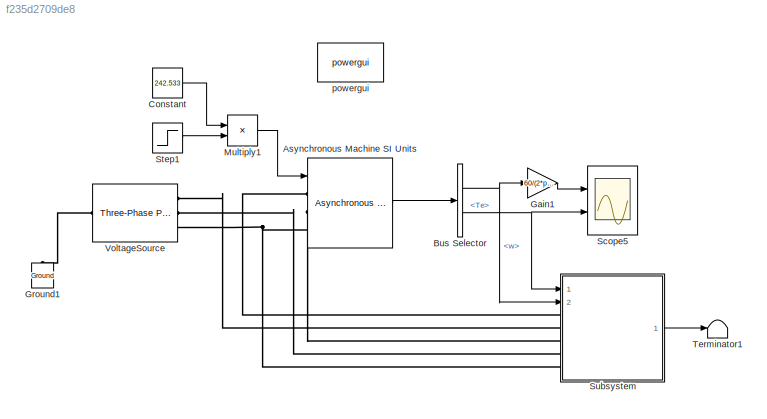
MODEL slx_f235d2709de8
KIND model
CONFIG AbsTol = auto
CONFIG EnableMultiTasking = on
CONFIG FixedStep = auto
CONFIG MaxStep = 10e-6
CONFIG MinStep = auto
CONFIG RelTol = 1e-4
CONFIG SampleTimeConstraint = Unconstrained
CONFIG Solver = ode23tb
CONFIG SolverName = ode23tb
CONFIG StartTime = 0.0
CONFIG StopTime = 3
BLOCK [Reference] Asynchronous Machine SI Units  REF=powerlib/Machines/Asynchronous Machine
SI Units
  AttributesFormatString = \n
  Ports = [1, 1, 0, 0, 0, 3]
  SourceBlock = powerlib/Machines/Asynchronous Machine\nSI Units
  SourceProductBaseCode = PS
  SourceProductName = Simscape Electrical
  SourceType = Asynchronous Machine
BLOCK [BusSelector] Bus Selector
  OutputAsBus = off
  OutputSignals = w,Te
  Ports = [1, 2]
BLOCK [Constant] Constant
  SampleTime = Inf
  Value = 242.533
BLOCK [Gain] Gain1
  Gain = 60/(2*pi)
  OutDataTypeStr = Inherit: Inherit via internal rule
  ParamDataTypeStr = Inherit: Inherit via internal rule
  SaturateOnIntegerOverflow = off
BLOCK [Reference] Ground1  REF=powerlib/Elements/Ground
  Ports = [0, 0, 0, 0, 0, 1]
  SourceBlock = powerlib/Elements/Ground
  SourceProductBaseCode = PS
  SourceProductName = Simscape Electrical
  SourceType = Ground
BLOCK [Product] Multiply1
  InputSameDT = off
  OutDataTypeStr = Inherit: Inherit via internal rule
  Ports = [2, 1]
  RndMeth = Floor
  SaturateOnIntegerOverflow = off
BLOCK [Scope] Scope5
  Floating = off
  NumInputPorts = 2
  Ports = [2]
  ScopeSpecificationString = Simulink.scopes.TimeScopeBlockCfg('CurrentConfiguration', extmgr.ConfigurationSet(extmgr.Configuration('Core','General UI',true),extmgr.Configuration('Core','Source UI',true),extmgr.Configuration('Sources','WiredSimulink',true,'DataLoggingVariableName','ScopeData5'),extmgr.Configuration('Visuals','Time Domain',true,'SerializedDisplays',{struct('MinYLimReal','-223.28995','MaxYLimReal','1750.68556',...<+2076ch>
BLOCK [Step] Step1
  SampleTime = 0
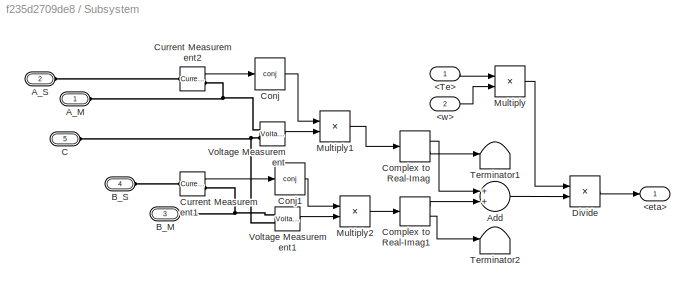
BLOCK [SubSystem] Subsystem
  Ports = [2, 1, 0, 0, 0, 5]
  RequestExecContextInheritance = off
BLOCK [Inport] Subsystem/<Te>
  IconDisplay = Port number
BLOCK [Outport] Subsystem/<eta>
  IconDisplay = Port number
BLOCK [Inport] Subsystem/<w>
  IconDisplay = Port number
  Port = 2
BLOCK [PMIOPort] Subsystem/A_M
  Side = Left
BLOCK [PMIOPort] Subsystem/A_S
  Port = 2
  Side = Left
BLOCK [Sum] Subsystem/Add
  InputSameDT = off
  OutDataTypeStr = Inherit: Inherit via internal rule
  Ports = [2, 1]
  SaturateOnIntegerOverflow = off
BLOCK [PMIOPort] Subsystem/B_M
  Port = 3
  Side = Left
BLOCK [PMIOPort] Subsystem/B_S
  Port = 4
  Side = Left
BLOCK [PMIOPort] Subsystem/C
  Port = 5
  Side = Left
BLOCK [ComplexToRealImag] Subsystem/Complex to Real-Imag
  Ports = [1, 2]
BLOCK [ComplexToRealImag] Subsystem/Complex to Real-Imag1
  Ports = [1, 2]
BLOCK [Math] Subsystem/Conj
  Operator = conj
  Ports = [1, 1]
BLOCK [Math] Subsystem/Conj1
  Operator = conj
  Ports = [1, 1]
BLOCK [Reference] Subsystem/Current Measurement1  REF=powerlib/Measurements/Current Measurement
  Ports = [0, 1, 0, 0, 0, 1, 1]
  SourceBlock = powerlib/Measurements/Current Measurement
  SourceProductBaseCode = PS
  SourceProductName = Simscape Power Systems
  SourceType = Current Measurement
  UserDataPersistent = on
BLOCK [Reference] Subsystem/Current Measurement2  REF=powerlib/Measurements/Current Measurement
  Ports = [0, 1, 0, 0, 0, 1, 1]
  SourceBlock = powerlib/Measurements/Current Measurement
  SourceProductBaseCode = PS
  SourceProductName = Simscape Power Systems
  SourceType = Current Measurement
  UserDataPersistent = on
BLOCK [Product] Subsystem/Divide
  InputSameDT = off
  Inputs = */
  OutDataTypeStr = Inherit: Inherit via internal rule
  Ports = [2, 1]
  RndMeth = Floor
  SaturateOnIntegerOverflow = off
BLOCK [Product] Subsystem/Multiply
  InputSameDT = off
  OutDataTypeStr = Inherit: Inherit via internal rule
  Ports = [2, 1]
  RndMeth = Floor
  SaturateOnIntegerOverflow = off
BLOCK [Product] Subsystem/Multiply1
  InputSameDT = off
  OutDataTypeStr = Inherit: Inherit via internal rule
  Ports = [2, 1]
  RndMeth = Floor
  SaturateOnIntegerOverflow = off
BLOCK [Product] Subsystem/Multiply2
  InputSameDT = off
  OutDataTypeStr = Inherit: Inherit via internal rule
  Ports = [2, 1]
  RndMeth = Floor
  SaturateOnIntegerOverflow = off
BLOCK [Terminator] Subsystem/Terminator1
BLOCK [Terminator] Subsystem/Terminator2
BLOCK [Reference] Subsystem/Voltage Measurement  REF=powerlib/Measurements/Voltage Measurement
  Ports = [0, 1, 0, 0, 0, 2]
  SourceBlock = powerlib/Measurements/Voltage Measurement
  SourceProductBaseCode = PS
  SourceProductName = Simscape Power Systems
  SourceType = Voltage Measurement
  UserDataPersistent = on
BLOCK [Reference] Subsystem/Voltage Measurement1  REF=powerlib/Measurements/Voltage Measurement
  Ports = [0, 1, 0, 0, 0, 2]
  SourceBlock = powerlib/Measurements/Voltage Measurement
  SourceProductBaseCode = PS
  SourceProductName = Simscape Power Systems
  SourceType = Voltage Measurement
  UserDataPersistent = on
BLOCK [Terminator] Terminator1
BLOCK [Reference] VoltageSource  REF=powerlib/Electrical
Sources/Three-Phase
Programmable
Voltage Source
  Ports = [0, 0, 0, 0, 0, 1, 3]
  SourceBlock = powerlib/Electrical\nSources/Three-Phase\nProgrammable\nVoltage Source
  SourceProductBaseCode = PS
  SourceProductName = Simscape Electrical
  SourceType = Three-Phase Programmable Voltage Source
BLOCK [Reference] powergui  REF=powerlib/powergui
  Ports = []
  Priority = 1
  SourceBlock = powerlib/powergui
  SourceProductBaseCode = PS
  SourceProductName = Simscape Power Systems
  SourceType = PSB option menu block
LINE Asynchronous Machine SI Units:1 -> Bus Selector:1
NET Bus Selector:1 -> Gain1:1, Subsystem:2
NET Bus Selector:2 -> Scope5:2, Subsystem:1
LINE Constant:1 -> Multiply1:1
LINE Gain1:1 -> Scope5:1
LINE Multiply1:1 -> Asynchronous Machine SI Units:1
LINE Step1:1 -> Multiply1:2
LINE Subsystem/<Te>:1 -> Subsystem/Multiply:1
LINE Subsystem/<w>:1 -> Subsystem/Multiply:2
LINE Subsystem/Add:1 -> Subsystem/Divide:2
LINE Subsystem/Complex to Real-Imag1:1 -> Subsystem/Add:2
LINE Subsystem/Complex to Real-Imag1:2 -> Subsystem/Terminator2:1
LINE Subsystem/Complex to Real-Imag:1 -> Subsystem/Add:1
LINE Subsystem/Complex to Real-Imag:2 -> Subsystem/Terminator1:1
LINE Subsystem/Conj1:1 -> Subsystem/Multiply2:1
LINE Subsystem/Conj:1 -> Subsystem/Multiply1:1
LINE Subsystem/Current Measurement1:1 -> Subsystem/Conj1:1
LINE Subsystem/Current Measurement2:1 -> Subsystem/Conj:1
LINE Subsystem/Divide:1 -> Subsystem/<eta>:1
LINE Subsystem/Multiply1:1 -> Subsystem/Complex to Real-Imag:1
LINE Subsystem/Multiply2:1 -> Subsystem/Complex to Real-Imag1:1
LINE Subsystem/Multiply:1 -> Subsystem/Divide:1
LINE Subsystem/Voltage Measurement1:1 -> Subsystem/Multiply2:2
LINE Subsystem/Voltage Measurement:1 -> Subsystem/Multiply1:2
LINE Subsystem:1 -> Terminator1:1
PLINE Asynchronous Machine SI Units:LConn1 -- Subsystem:LConn1
PLINE Asynchronous Machine SI Units:LConn2 -- Subsystem:LConn3
PNET net1: Asynchronous Machine SI Units:LConn3 -- Subsystem:LConn5 -- VoltageSource:RConn3
PLINE Ground1:LConn1 -- VoltageSource:LConn1
PNET net2: Subsystem/A_M:RConn1 -- Subsystem/Current Measurement2:RConn1 -- Subsystem/Voltage Measurement:LConn1
PLINE Subsystem/A_S:RConn1 -- Subsystem/Current Measurement2:LConn1
PNET net3: Subsystem/B_M:RConn1 -- Subsystem/Current Measurement1:RConn1 -- Subsystem/Voltage Measurement1:LConn1
PLINE Subsystem/B_S:RConn1 -- Subsystem/Current Measurement1:LConn1
PNET net4: Subsystem/C:RConn1 -- Subsystem/Voltage Measurement1:LConn2 -- Subsystem/Voltage Measurement:LConn2
PLINE Subsystem:LConn2 -- VoltageSource:RConn1
PLINE Subsystem:LConn4 -- VoltageSource:RConn2
note: NET lines group one-source signal fan-out (src -> all destinations, sorted); 1:1 wires keep LINE; PNET lines group multi-terminal physical nets as a canonical sorted terminal list (undirected conserving connections); 2-terminal nets keep the pairwise PLINE form
